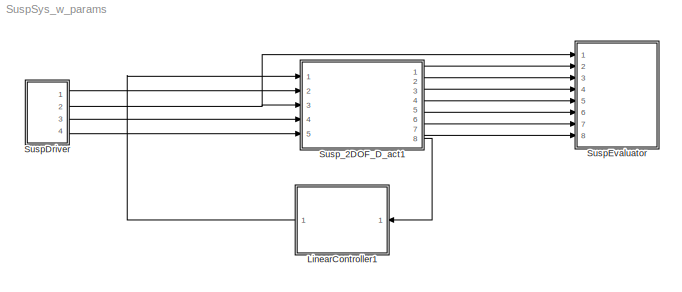
MODEL SuspSys_w_params
KIND model
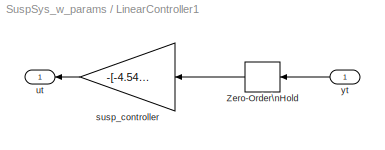
BLOCK [SubSystem] LinearController1
  FunctionWithSeparateData = off
  MaskHideContents = off
  MinAlgLoopOccurrences = off
  Opaque = off
  Ports = [1, 1]
  PropExecContextOutsideSubsystem = off
  RTWSystemCode = Auto
  RequestExecContextInheritance = off
  SID = 174
BLOCK [ZeroOrderHold] LinearController1/Zero-Order\nHold
  SID = 181
  SampleTime = 0.01
BLOCK [Gain] LinearController1/susp_controller
  Gain = -[-4.5469 1.7393 7 9.3078 0 0]
  Multiplication = Matrix(K*u)
  OutDataTypeStr = Inherit: Inherit via internal rule
  ParamDataTypeStr = Inherit: Inherit via internal rule
  SID = 176
  SaturateOnIntegerOverflow = off
BLOCK [Outport] LinearController1/ut
  IconDisplay = Port number
  SID = 177
BLOCK [Inport] LinearController1/yt
  IconDisplay = Port number
  SID = 175
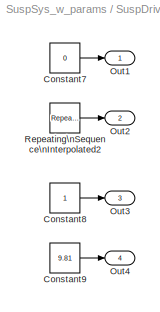
BLOCK [SubSystem] SuspDriver
  FunctionWithSeparateData = off
  MaskHideContents = off
  MinAlgLoopOccurrences = off
  Opaque = off
  Ports = [0, 4]
  PropExecContextOutsideSubsystem = off
  RTWSystemCode = Auto
  RequestExecContextInheritance = off
  SID = 182
BLOCK [Constant] SuspDriver/Constant7
  SID = 171
  Value = 0
BLOCK [Constant] SuspDriver/Constant8
  SID = 172
BLOCK [Constant] SuspDriver/Constant9
  SID = 173
  Value = 9.81
BLOCK [Outport] SuspDriver/Out1
  IconDisplay = Port number
  SID = 183
BLOCK [Outport] SuspDriver/Out2
  IconDisplay = Port number
  Port = 2
  SID = 184
BLOCK [Outport] SuspDriver/Out3
  IconDisplay = Port number
  Port = 3
  SID = 185
BLOCK [Outport] SuspDriver/Out4
  IconDisplay = Port number
  Port = 4
  SID = 186
BLOCK [Reference] SuspDriver/Repeating\nSequence\nInterpolated2  REF=simulink/Sources/Repeating\nSequence\nInterpolated
  FunctionWithSeparateData = off
  GeneratePreprocessorConditionals = off
  LockScale = off
  LookUpMeth = Interpolation-Use End Values
  OutDataType = fixdt(0,8)
  OutDataTypeStr = double
  OutMax = []
  OutMin = []
  OutScaling = 2^-10
  OutValues = [0 0.5 0 -0.5 0 -0.5 0 0.5 0].'
  OutputDataTypeScalingMode = double
  Ports = [0, 1]
  RTWMemSecDataConstants = Inherit from model
  RTWMemSecDataInternal = Inherit from model
  RTWMemSecDataParameters = Inherit from model
  RTWMemSecFuncExecute = Inherit from model
  RTWMemSecFuncInitTerm = Inherit from model
  SID = 178
  ShowPortLabels = FromPortIcon
  SourceBlock = simulink/Sources/Repeating\nSequence\nInterpolated
  SourceType = Repeating Sequence Interpolated
  SystemSampleTime = -1
  TimeValues = [0 0.1 0.2 0.3 0.4 0.6 0.7 0.8 0.9].'
  tsamp = 0.01
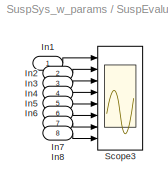
BLOCK [SubSystem] SuspEvaluator
  FunctionWithSeparateData = off
  MaskHideContents = off
  MinAlgLoopOccurrences = off
  Opaque = off
  Ports = [8]
  PropExecContextOutsideSubsystem = off
  RTWSystemCode = Auto
  RequestExecContextInheritance = off
  SID = 187
BLOCK [Inport] SuspEvaluator/In1
  IconDisplay = Port number
  SID = 188
BLOCK [Inport] SuspEvaluator/In2
  IconDisplay = Port number
  Port = 2
  SID = 189
BLOCK [Inport] SuspEvaluator/In3
  IconDisplay = Port number
  Port = 3
  SID = 190
BLOCK [Inport] SuspEvaluator/In4
  IconDisplay = Port number
  Port = 4
  SID = 191
BLOCK [Inport] SuspEvaluator/In5
  IconDisplay = Port number
  Port = 5
  SID = 192
BLOCK [Inport] SuspEvaluator/In6
  IconDisplay = Port number
  Port = 6
  SID = 193
BLOCK [Inport] SuspEvaluator/In7
  IconDisplay = Port number
  Port = 7
  SID = 194
BLOCK [Inport] SuspEvaluator/In8
  IconDisplay = Port number
  Port = 8
  SID = 195
BLOCK [Scope] SuspEvaluator/Scope3
  DataFormat = StructureWithTime
  Floating = off
  LimitDataPoints = off
  NumInputPorts = 8
  Ports = [8]
  SID = 179
  SampleTime = 0
  SaveName = ScopeData2
  SaveToWorkspace = on
  YMax = 0.5~0.5~30~0.3~5~5~5~5
  YMin = -0.5~-0.5~-30~-0.9~-5~-5~-5~-5
  ZoomMode = yonly
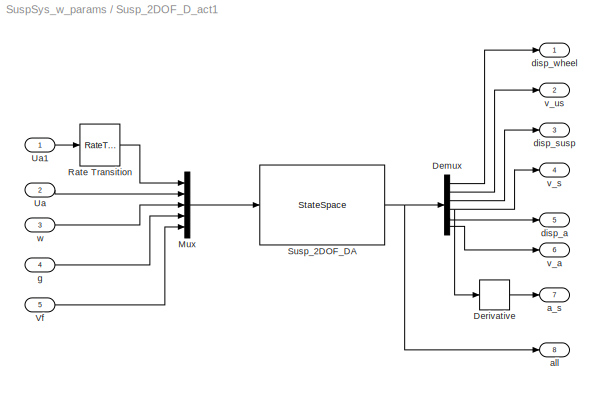
BLOCK [SubSystem] Susp_2DOF_D_act1
  AncestorBlock = suspension_lib/Suspension:G(s)
  FunctionWithSeparateData = off
  MaskCallbackString = ||||||||
  MaskEnableString = on,on,on,on,on,on,on,on,on
  MaskHideContents = off
  MaskIconFrame = on
  MaskIconOpaque = on
  MaskIconRotate = none
  MaskIconUnits = autoscale
  MaskInitialization = w = sqrt( k_us / m_us );\nw_us = sqrt( k_us / m_us );\nrho = m_s / m_us;\nrho_a = 0;\ng = 9.81; % m/s^2 gravitational acceleration\n\n% m_s == 0 and m_us == 0 are not allowed\n% Work around possible divide by zero when m_a == 0\n%  build A by rows\nA = [0 1 0 0 0 0]; \nA = [A; -(k_us/m_us) (-b_s/m_us)+(b_us/m_us) (k_s/m_us) (b_s/m_us) 0 0]; \nA = [A; 0 -1 0 1 0 0]; \nA = [A; 0 (b_s/m_s) -(k_s/m_s)...<+984ch>
  MaskPortRotate = default
  MaskPromptString = Sprung mass (kg)|Sprung mass spring constant (N/m)|Sprung mass damping coefficient (N s/m)|Unsprung mass (kg)|Unsprung mass spring constant (N/m)|Unsprung mass damping coefficient (N s/m)|Active Damper mass (kg)|Active Damper spring constant (N/m)|Active Damper damping coeff (N s/m)
  MaskStyleString = edit,edit,edit,edit,edit,edit,edit,edit,edit
  MaskToolTipString = on,on,on,on,on,on,on,on,on
  MaskTunableValueString = on,on,on,on,on,on,on,on,on
  MaskValueString = VehicleMassKg|DamperSpringConstNpm|DamperDampingCoeffNspm|WheelAssemblyMassKg|WheelSpringConstNpm|WheelDampingCoeffNspm|0|0|0
  MaskVariables = m_s=@1;k_s=@2;b_s=@3;m_us=@4;k_us=@5;b_us=@6;m_a=@7;k_a=@8;b_a=@9;
  MaskVisibilityString = on,on,on,on,on,on,on,on,on
  MinAlgLoopOccurrences = off
  Opaque = off
  Ports = [5, 8]
  PropExecContextOutsideSubsystem = off
  RTWSystemCode = Auto
  RequestExecContextInheritance = off
  SID = 180
BLOCK [Demux] Susp_2DOF_D_act1/Demux
  DisplayOption = bar
  Outputs = 6
  Ports = [1, 6]
  SID = 180:47
BLOCK [Derivative] Susp_2DOF_D_act1/Derivative
  SID = 180:55
BLOCK [Mux] Susp_2DOF_D_act1/Mux
  DisplayOption = bar
  Inputs = 5
  Ports = [5, 1]
  SID = 180:46
BLOCK [RateTransition] Susp_2DOF_D_act1/Rate Transition
  SID = 180:63
BLOCK [StateSpace] Susp_2DOF_D_act1/Susp_2DOF_DA
  A = A
  B = B
  C = eye(6)
  D = zeros(6,5)
  SID = 180:43
BLOCK [Inport] Susp_2DOF_D_act1/Ua
  IconDisplay = Port number
  Port = 2
  SID = 180:44
BLOCK [Inport] Susp_2DOF_D_act1/Ua1
  IconDisplay = Port number
  SID = 180:60
BLOCK [Inport] Susp_2DOF_D_act1/Vf
  IconDisplay = Port number
  Port = 5
  SID = 180:54
BLOCK [Outport] Susp_2DOF_D_act1/a_s
  IconDisplay = Port number
  Port = 7
  SID = 180:56
BLOCK [Outport] Susp_2DOF_D_act1/all
  IconDisplay = Port number
  Port = 8
  SID = 180:61
BLOCK [Outport] Susp_2DOF_D_act1/disp_a
  IconDisplay = Port number
  Port = 5
  SID = 180:51
BLOCK [Outport] Susp_2DOF_D_act1/disp_susp
  IconDisplay = Port number
  Port = 3
  SID = 180:49
BLOCK [Outport] Susp_2DOF_D_act1/disp_wheel
  IconDisplay = Port number
  SID = 180:42
BLOCK [Inport] Susp_2DOF_D_act1/g
  IconDisplay = Port number
  Port = 4
  SID = 180:53
BLOCK [Outport] Susp_2DOF_D_act1/v_a
  IconDisplay = Port number
  Port = 6
  SID = 180:52
BLOCK [Outport] Susp_2DOF_D_act1/v_s
  IconDisplay = Port number
  Port = 4
  SID = 180:50
BLOCK [Outport] Susp_2DOF_D_act1/v_us
  IconDisplay = Port number
  Port = 2
  SID = 180:48
BLOCK [Inport] Susp_2DOF_D_act1/w
  IconDisplay = Port number
  Port = 3
  SID = 180:45
LINE LinearController1/Zero-Order\nHold:1 -> LinearController1/susp_controller:1
LINE LinearController1/susp_controller:1 -> LinearController1/ut:1
LINE LinearController1/yt:1 -> LinearController1/Zero-Order\nHold:1
LINE LinearController1:1 -> Susp_2DOF_D_act1:1
LINE SuspDriver/Constant7:1 -> SuspDriver/Out1:1
LINE SuspDriver/Constant8:1 -> SuspDriver/Out3:1
LINE SuspDriver/Constant9:1 -> SuspDriver/Out4:1
LINE SuspDriver/Repeating\nSequence\nInterpolated2:1 -> SuspDriver/Out2:1
LINE SuspDriver:1 -> Susp_2DOF_D_act1:2
NET SuspDriver:2 -> SuspEvaluator:1, Susp_2DOF_D_act1:3
LINE SuspDriver:3 -> Susp_2DOF_D_act1:4
LINE SuspDriver:4 -> Susp_2DOF_D_act1:5
LINE SuspEvaluator/In1:1 -> SuspEvaluator/Scope3:1
LINE SuspEvaluator/In2:1 -> SuspEvaluator/Scope3:2
LINE SuspEvaluator/In3:1 -> SuspEvaluator/Scope3:3
LINE SuspEvaluator/In4:1 -> SuspEvaluator/Scope3:4
LINE SuspEvaluator/In5:1 -> SuspEvaluator/Scope3:5
LINE SuspEvaluator/In6:1 -> SuspEvaluator/Scope3:6
LINE SuspEvaluator/In7:1 -> SuspEvaluator/Scope3:7
LINE SuspEvaluator/In8:1 -> SuspEvaluator/Scope3:8
LINE Susp_2DOF_D_act1/Demux:1 -> Susp_2DOF_D_act1/disp_wheel:1
LINE Susp_2DOF_D_act1/Demux:2 -> Susp_2DOF_D_act1/v_us:1
LINE Susp_2DOF_D_act1/Demux:3 -> Susp_2DOF_D_act1/disp_susp:1
NET Susp_2DOF_D_act1/Demux:4 -> Susp_2DOF_D_act1/Derivative:1, Susp_2DOF_D_act1/v_s:1
LINE Susp_2DOF_D_act1/Demux:5 -> Susp_2DOF_D_act1/disp_a:1
LINE Susp_2DOF_D_act1/Demux:6 -> Susp_2DOF_D_act1/v_a:1
LINE Susp_2DOF_D_act1/Derivative:1 -> Susp_2DOF_D_act1/a_s:1
LINE Susp_2DOF_D_act1/Mux:1 -> Susp_2DOF_D_act1/Susp_2DOF_DA:1
LINE Susp_2DOF_D_act1/Rate Transition:1 -> Susp_2DOF_D_act1/Mux:1
NET Susp_2DOF_D_act1/Susp_2DOF_DA:1 -> Susp_2DOF_D_act1/Demux:1, Susp_2DOF_D_act1/all:1
LINE Susp_2DOF_D_act1/Ua1:1 -> Susp_2DOF_D_act1/Rate Transition:1
LINE Susp_2DOF_D_act1/Ua:1 -> Susp_2DOF_D_act1/Mux:2
LINE Susp_2DOF_D_act1/Vf:1 -> Susp_2DOF_D_act1/Mux:5
LINE Susp_2DOF_D_act1/g:1 -> Susp_2DOF_D_act1/Mux:4
LINE Susp_2DOF_D_act1/w:1 -> Susp_2DOF_D_act1/Mux:3
LINE Susp_2DOF_D_act1:1 -> SuspEvaluator:2
LINE Susp_2DOF_D_act1:2 -> SuspEvaluator:3
LINE Susp_2DOF_D_act1:3 -> SuspEvaluator:4
LINE Susp_2DOF_D_act1:4 -> SuspEvaluator:5
LINE Susp_2DOF_D_act1:5 -> SuspEvaluator:6
LINE Susp_2DOF_D_act1:6 -> SuspEvaluator:7
LINE Susp_2DOF_D_act1:7 -> SuspEvaluator:8
LINE Susp_2DOF_D_act1:8 -> LinearController1:1
note: NET lines group one-source signal fan-out (src -> all destinations, sorted); 1:1 wires keep LINE
